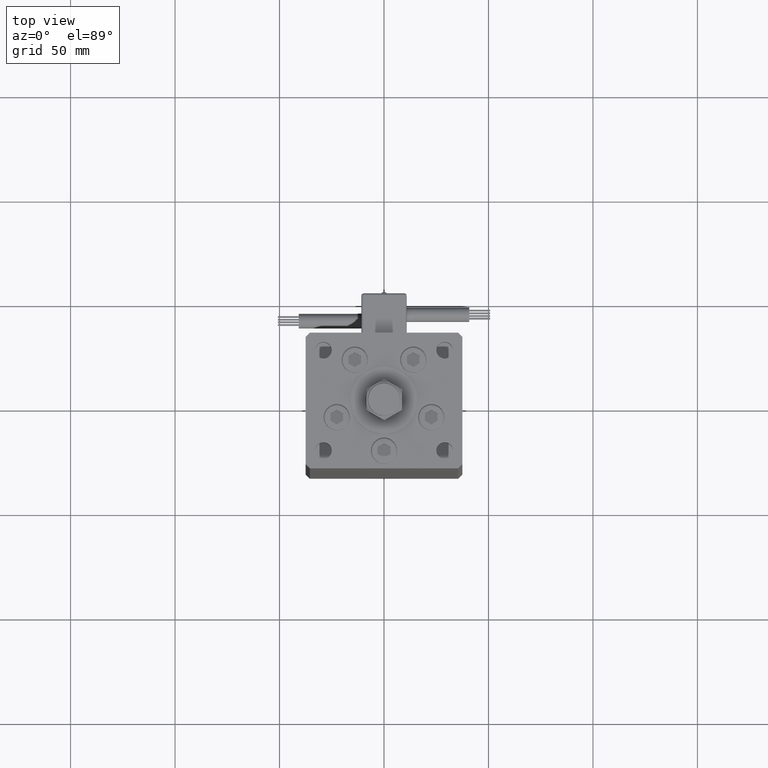
[diagram: clean part render]
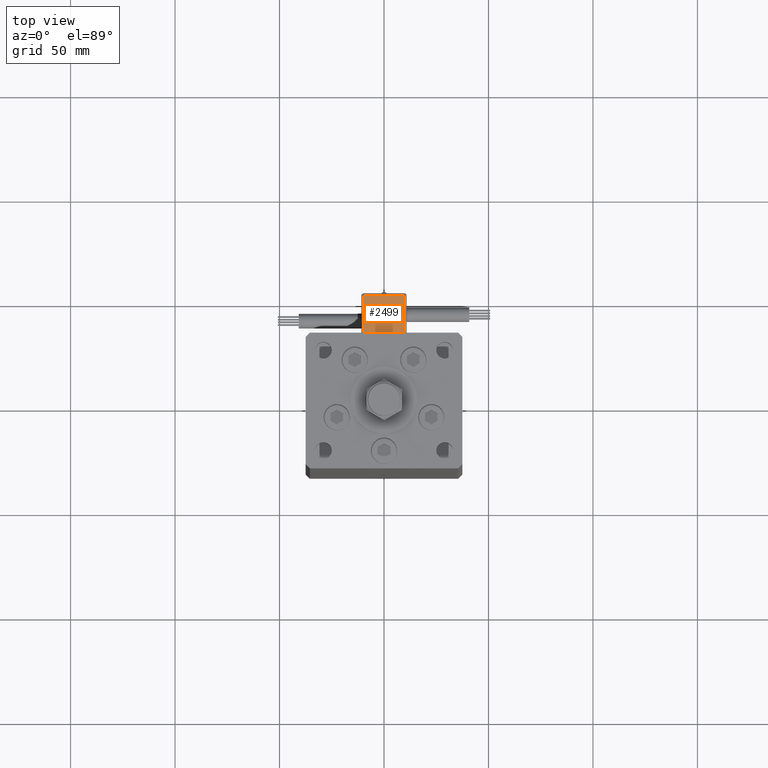
[diagram: same view with one face highlighted and labeled with its STEP entity id]
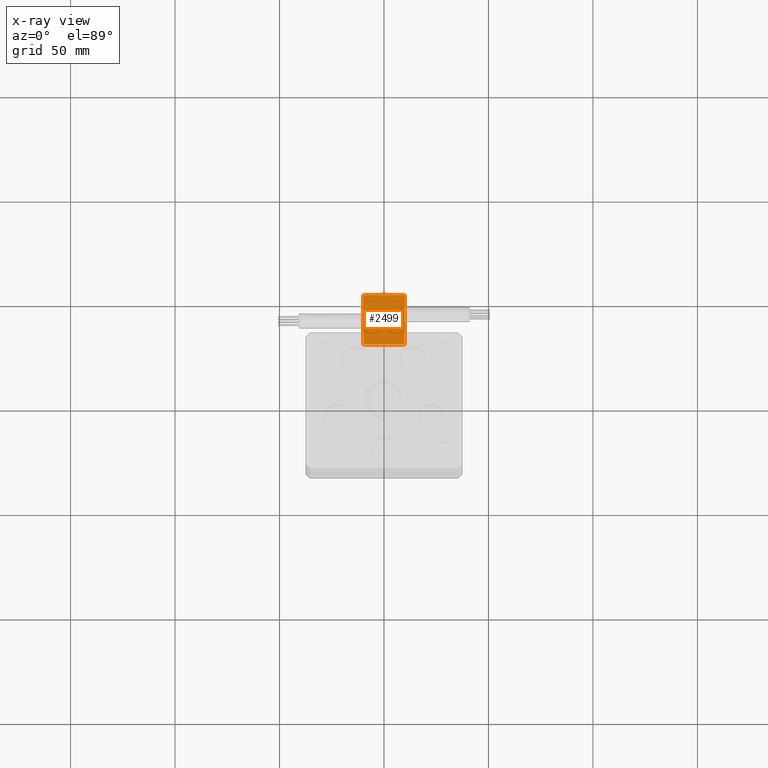
[diagram: x-ray of the same camera — body ghosted, the highlighted face saturated]
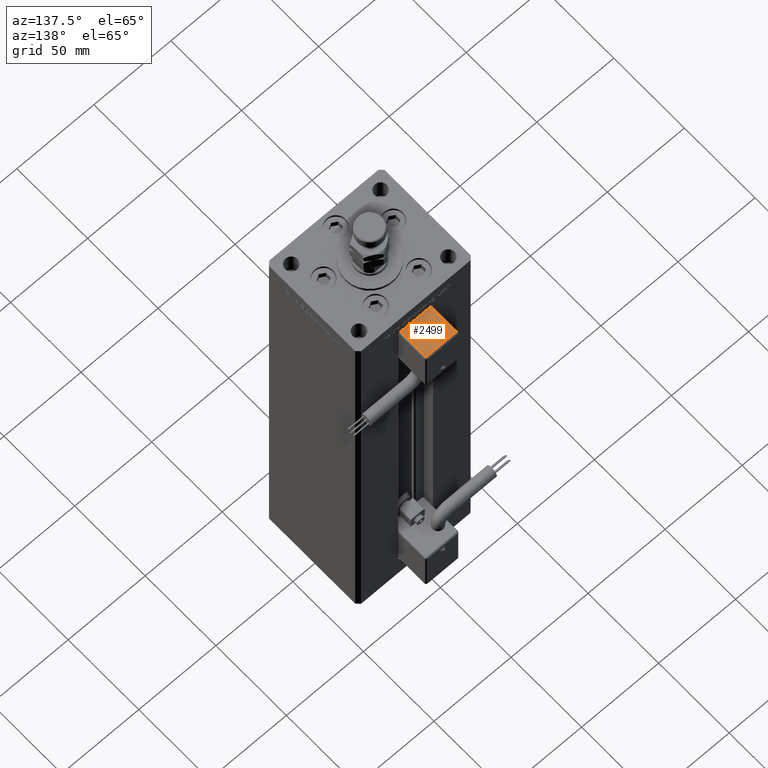
[diagram: same view with one face highlighted and labeled with its STEP entity id]
A machine part, top view. The second image highlights one B-rep face of the part: STEP entity #2499.
The next image is the same camera in x-ray: the body ghosted, the highlighted face saturated — about 0% of this face is hidden behind the body in this view.
A second angle (auxiliary view) of the same face is appended — the face is thin or edge-on in the first view.
In plain terms, the highlighted planar face has unit normal (0, 0, -1).
Its self-contained STEP definition (entity closure, byte-faithful):
#2499 = ADVANCED_FACE ( 'NONE', ( #55099 ), #46210, .F. ) ;
#2807 = DIRECTION ( 'NONE',  ( 2.220446049250000002E-16, 1.400000000000000069E-16, -1.000000000000000000 ) ) ;
#4560 = CARTESIAN_POINT ( 'NONE',  ( 10.80000000000000071, 27.00000000000000000, -25.00000000000000000 ) ) ;
#4946 = CARTESIAN_POINT ( 'NONE',  ( 9.799999999999998934, 50.50000000000000000, -25.00000000000000000 ) ) ;
#5009 = EDGE_LOOP ( 'NONE', ( #22355, #18052, #52132, #19667 ) ) ;
#10734 = DIRECTION ( 'NONE',  ( 3.108624468950000014E-32, -1.000000000000000000, -1.400000000000000069E-16 ) ) ;
#11420 = VECTOR ( 'NONE', #22077, 1000.000000000000000 ) ;
#14515 = AXIS2_PLACEMENT_3D ( 'NONE', #15460, #2807, #28403 ) ;
#15176 = DIRECTION ( 'NONE',  ( -1.000000000000000000, 0.000000000000000000, -2.220446049250000002E-16 ) ) ;
#15460 = CARTESIAN_POINT ( 'NONE',  ( 10.80000000000000071, 51.50000000000000000, -25.00000000000000000 ) ) ;
#16818 = DIRECTION ( 'NONE',  ( -3.108624468950000014E-32, 1.000000000000000000, 1.400000000000000069E-16 ) ) ;
#16916 = VERTEX_POINT ( 'NONE', #24941 ) ;
#18052 = ORIENTED_EDGE ( 'NONE', *, *, #31418, .T. ) ;
#19667 = ORIENTED_EDGE ( 'NONE', *, *, #55934, .T. ) ;
#19798 = CARTESIAN_POINT ( 'NONE',  ( -9.799999999999998934, 50.50000000000000000, -25.00000000000000000 ) ) ;
#22077 = DIRECTION ( 'NONE',  ( 1.000000000000000000, 0.000000000000000000, 2.220446049250000002E-16 ) ) ;
#22355 = ORIENTED_EDGE ( 'NONE', *, *, #28646, .T. ) ;
#23523 = VERTEX_POINT ( 'NONE', #35998 ) ;
#23898 = VERTEX_POINT ( 'NONE', #19798 ) ;
#24941 = CARTESIAN_POINT ( 'NONE',  ( 9.799999999999998934, 27.00000000000000000, -25.00000000000000000 ) ) ;
#25446 = CARTESIAN_POINT ( 'NONE',  ( 9.799999999999998934, 51.50000000000000000, -25.00000000000000000 ) ) ;
#26940 = VECTOR ( 'NONE', #16818, 1000.000000000000000 ) ;
#28403 = DIRECTION ( 'NONE',  ( 0.000000000000000000, -1.000000000000000000, -1.400000000000000069E-16 ) ) ;
#28646 = EDGE_CURVE ( 'NONE', #23898, #23523, #41185, .T. ) ;
#31418 = EDGE_CURVE ( 'NONE', #23523, #16916, #43928, .T. ) ;
#31811 = VECTOR ( 'NONE', #15176, 1000.000000000000000 ) ;
#33229 = LINE ( 'NONE', #25446, #26940 ) ;
#35998 = CARTESIAN_POINT ( 'NONE',  ( -9.799999999999998934, 27.00000000000000000, -25.00000000000000000 ) ) ;
#36080 = VERTEX_POINT ( 'NONE', #4946 ) ;
#37308 = LINE ( 'NONE', #42189, #31811 ) ;
#41185 = LINE ( 'NONE', #54386, #43413 ) ;
#42189 = CARTESIAN_POINT ( 'NONE',  ( 10.80000000000000071, 50.50000000000000000, -25.00000000000000000 ) ) ;
#43309 = EDGE_CURVE ( 'NONE', #16916, #36080, #33229, .T. ) ;
#43413 = VECTOR ( 'NONE', #10734, 1000.000000000000000 ) ;
#43928 = LINE ( 'NONE', #4560, #11420 ) ;
#46210 = PLANE ( 'NONE',  #14515 ) ;
#52132 = ORIENTED_EDGE ( 'NONE', *, *, #43309, .T. ) ;
#54386 = CARTESIAN_POINT ( 'NONE',  ( -9.799999999999998934, 51.50000000000000000, -25.00000000000000000 ) ) ;
#55099 = FACE_OUTER_BOUND ( 'NONE', #5009, .T. ) ;
#55934 = EDGE_CURVE ( 'NONE', #36080, #23898, #37308, .T. ) ;